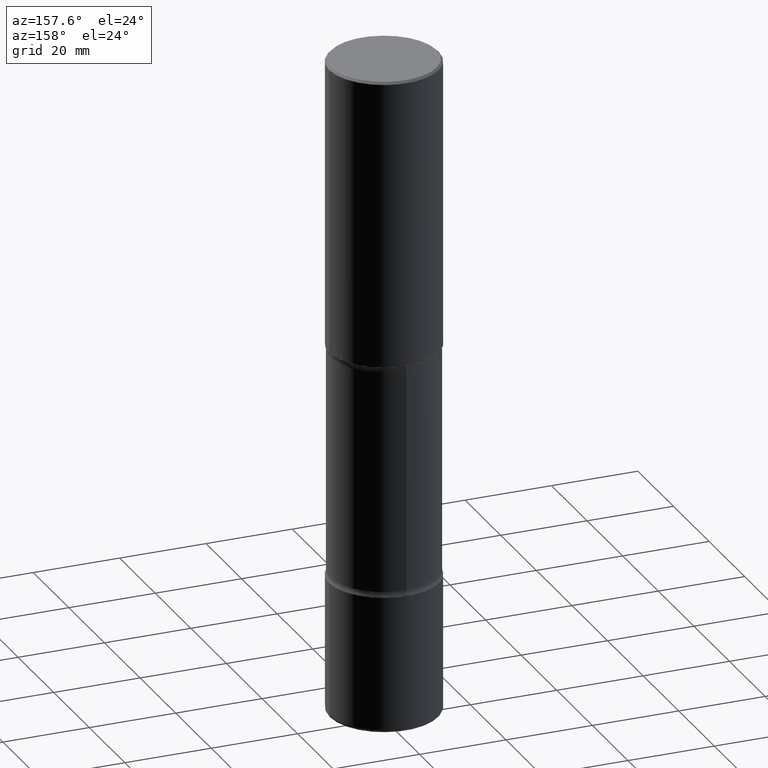
[diagram: clean part render]
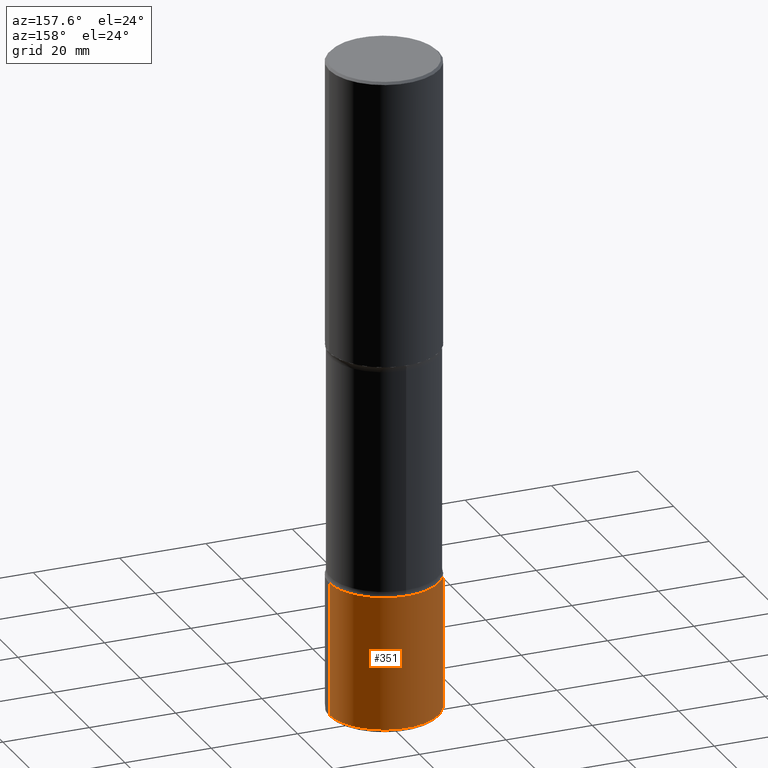
[diagram: same view with one face highlighted and labeled with its STEP entity id]
A machine part, auxiliary view. The second image highlights one B-rep face of the part: STEP entity #351.
In plain terms, the highlighted cylindrical surface (partial cylindrical patch) has radius 12.7 mm, axis along (-0, 0, 1).
Its self-contained STEP definition (entity closure, byte-faithful):
#32 = CIRCLE ( 'NONE', #93, 0.5000000000000006661 ) ;
#51 = CARTESIAN_POINT ( 'NONE',  ( 1.161597682937940108E-28, -1.658453635950494339E-14, -4.750000000000000000 ) ) ;
#54 = CARTESIAN_POINT ( 'NONE',  ( 0.5000000000000006661, -2.007601769834807990E-14, -4.750000000000000000 ) ) ;
#78 = LINE ( 'NONE', #472, #295 ) ;
#93 = AXIS2_PLACEMENT_3D ( 'NONE', #491, #101, #276 ) ;
#100 = VERTEX_POINT ( 'NONE', #267 ) ;
#101 = DIRECTION ( 'NONE',  ( -2.445468806185136597E-29, 3.491481338843145583E-15, 1.000000000000000000 ) ) ;
#116 = EDGE_CURVE ( 'NONE', #136, #100, #455, .T. ) ;
#136 = VERTEX_POINT ( 'NONE', #54 ) ;
#143 = AXIS2_PLACEMENT_3D ( 'NONE', #542, #152, #529 ) ;
#152 = DIRECTION ( 'NONE',  ( -2.445468806185136597E-29, 3.491481338843145583E-15, 1.000000000000000000 ) ) ;
#154 = EDGE_CURVE ( 'NONE', #440, #344, #32, .T. ) ;
#175 = AXIS2_PLACEMENT_3D ( 'NONE', #51, #238, #284 ) ;
#192 = VECTOR ( 'NONE', #236, 39.37007874015748143 ) ;
#203 = ORIENTED_EDGE ( 'NONE', *, *, #116, .F. ) ;
#210 = EDGE_CURVE ( 'NONE', #440, #136, #78, .T. ) ;
#236 = DIRECTION ( 'NONE',  ( -2.445468806185136877E-29, 3.491481338843145188E-15, 1.000000000000000000 ) ) ;
#238 = DIRECTION ( 'NONE',  ( -2.445468806185136597E-29, 3.491481338843145583E-15, 1.000000000000000000 ) ) ;
#249 = DIRECTION ( 'NONE',  ( -2.445468806185136877E-29, 3.491481338843145188E-15, 1.000000000000000000 ) ) ;
#267 = CARTESIAN_POINT ( 'NONE',  ( -0.5000000000000006661, -1.516162629739875255E-14, -4.750000000000000000 ) ) ;
#276 = DIRECTION ( 'NONE',  ( 1.000000000000000000, -6.982962677686269077E-15, 0.000000000000000000 ) ) ;
#281 = CYLINDRICAL_SURFACE ( 'NONE', #143, 0.5000000000000006661 ) ;
#284 = DIRECTION ( 'NONE',  ( 1.000000000000000000, -6.982962677686265133E-15, 0.000000000000000000 ) ) ;
#295 = VECTOR ( 'NONE', #249, 39.37007874015748143 ) ;
#314 = ORIENTED_EDGE ( 'NONE', *, *, #210, .F. ) ;
#330 = CARTESIAN_POINT ( 'NONE',  ( -0.5000000000000006661, 3.552713678800505663E-15, -2.459467545127455974E-29 ) ) ;
#337 = EDGE_CURVE ( 'NONE', #344, #100, #374, .T. ) ;
#344 = VERTEX_POINT ( 'NONE', #366 ) ;
#351 = ADVANCED_FACE ( 'NONE', ( #535 ), #281, .T. ) ;
#354 = ORIENTED_EDGE ( 'NONE', *, *, #337, .T. ) ;
#366 = CARTESIAN_POINT ( 'NONE',  ( -0.5000000000000007772, -1.729142991409307210E-14, -5.969999999999999751 ) ) ;
#374 = LINE ( 'NONE', #330, #192 ) ;
#414 = CARTESIAN_POINT ( 'NONE',  ( 0.5000000000000007772, -2.433562493173672216E-14, -5.969999999999999751 ) ) ;
#437 = ORIENTED_EDGE ( 'NONE', *, *, #154, .T. ) ;
#440 = VERTEX_POINT ( 'NONE', #414 ) ;
#455 = CIRCLE ( 'NONE', #175, 0.5000000000000006661 ) ;
#472 = CARTESIAN_POINT ( 'NONE',  ( 0.5000000000000006661, -3.491481338843138088E-15, 2.438088387897971260E-29 ) ) ;
#491 = CARTESIAN_POINT ( 'NONE',  ( 1.459944877292526494E-28, -2.084414359289357934E-14, -5.969999999999999751 ) ) ;
#521 = EDGE_LOOP ( 'NONE', ( #437, #354, #203, #314 ) ) ;
#529 = DIRECTION ( 'NONE',  ( 1.000000000000000000, -6.982962677686266711E-15, 4.876176775795935793E-29 ) ) ;
#535 = FACE_OUTER_BOUND ( 'NONE', #521, .T. ) ;
#542 = CARTESIAN_POINT ( 'NONE',  ( 0.000000000000000000, 0.000000000000000000, 0.000000000000000000 ) ) ;